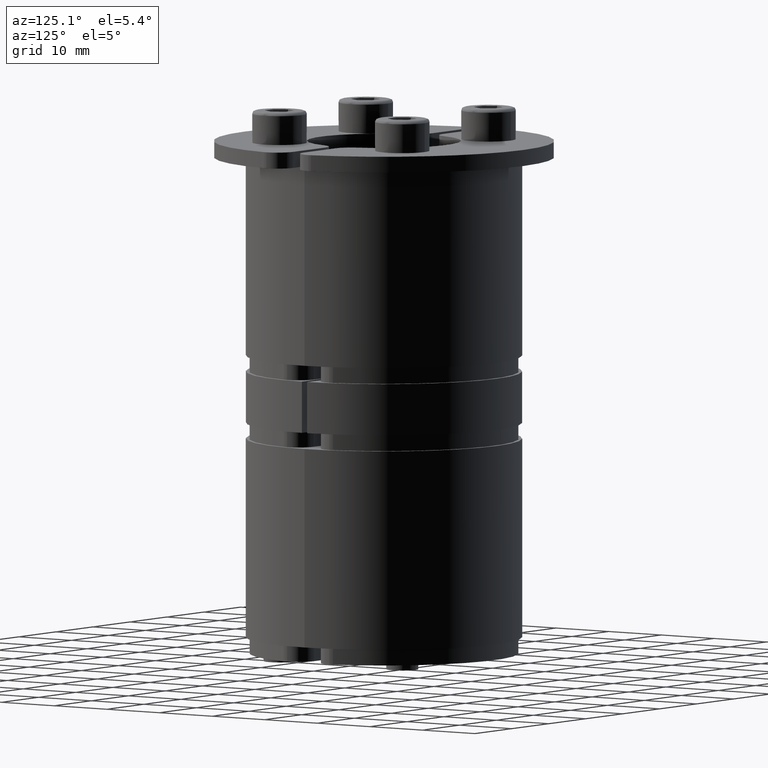
[diagram: clean part render]
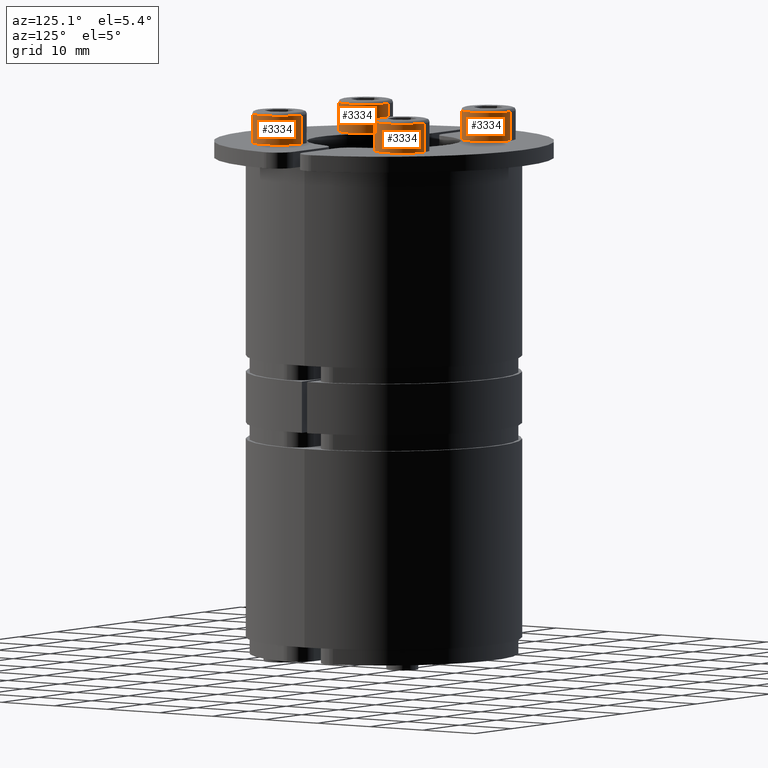
[diagram: same view with one multi-face feature highlighted, each face labeled with its STEP entity id]
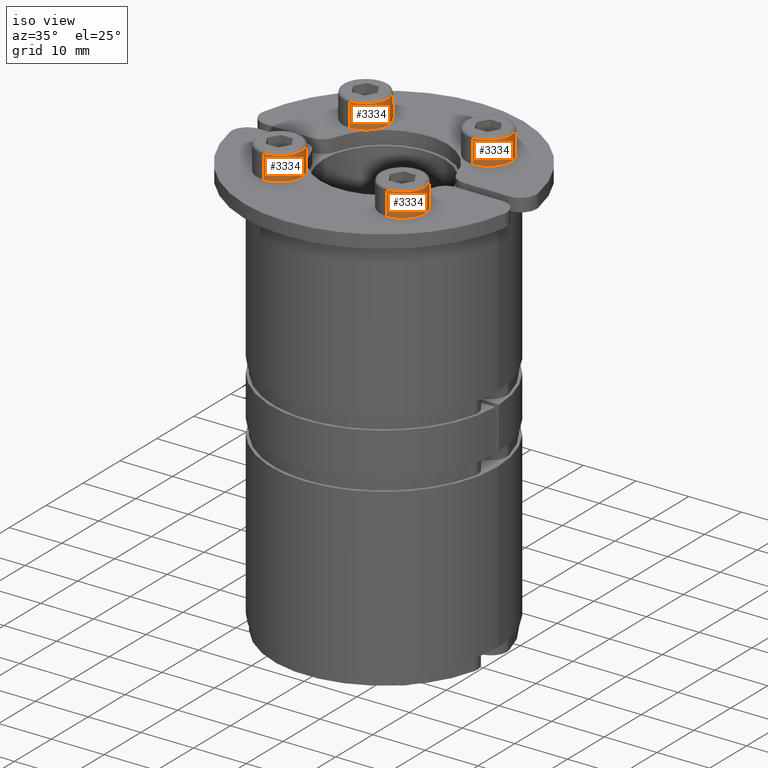
[diagram: same view with one multi-face feature highlighted, each face labeled with its STEP entity id]
A machine part, auxiliary view. The highlighted faces form ONE feature: a constant-radius fillet chain: 4 tangent blend faces with common blend radius 4.25 mm. The faces share edges in the B-rep.
A second angle (iso view) of the same feature is appended — it is thin or edge-on in the first view.
Their STEP definitions:
[1] entity #3334 (Cylinder):
#2724=CARTESIAN_POINT('',(2.842171E-014,4.250000000000000,0.0));
#2725=VERTEX_POINT('',#2724);
#2726=CARTESIAN_POINT('',(-4.500000000000085,4.250000000000227,0.0));
#2727=VERTEX_POINT('',#2726);
#2728=CARTESIAN_POINT('',(2.842171E-014,4.250000000000000,0.0));
#2729=DIRECTION('',(-1.0,0.0,0.0));
#2730=VECTOR('',#2729,4.500000000000114);
#2731=LINE('',#2728,#2730);
#2732=EDGE_CURVE('',#2725,#2727,#2731,.T.);
#2734=CARTESIAN_POINT('',(2.842171E-014,-4.250000000000000,-5.204577E-016));
#2735=VERTEX_POINT('',#2734);
#2743=CARTESIAN_POINT('',(-4.500000000000085,-4.250000000000000,-5.204577E-016));
#2744=VERTEX_POINT('',#2743);
#2745=CARTESIAN_POINT('',(-4.500000000000085,-4.250000000000000,-5.204577E-016));
#2746=DIRECTION('',(1.0,0.0,0.0));
#2747=VECTOR('',#2746,4.500000000000114);
#2748=LINE('',#2745,#2747);
#2749=EDGE_CURVE('',#2744,#2735,#2748,.T.);
#2833=CARTESIAN_POINT('',(-4.500000000000085,-5.204577E-016,4.250000000000000));
#2834=VERTEX_POINT('',#2833);
#2835=CARTESIAN_POINT('',(-4.500000000000085,0.0,0.0));
#2836=DIRECTION('',(-1.0,0.0,0.0));
#2837=DIRECTION('',(0.0,1.0,0.0));
#2838=AXIS2_PLACEMENT_3D('',#2835,#2836,#2837);
#2839=CIRCLE('',#2838,4.250000000000000);
#2840=EDGE_CURVE('',#2744,#2834,#2839,.T.);
#3305=CARTESIAN_POINT('',(-4.500000000000085,0.0,0.0));
#3306=DIRECTION('',(-1.0,0.0,0.0));
#3307=DIRECTION('',(0.0,1.0,0.0));
#3308=AXIS2_PLACEMENT_3D('',#3305,#3306,#3307);
#3309=CIRCLE('',#3308,4.250000000000000);
#3310=EDGE_CURVE('',#2834,#2727,#3309,.T.);
#3316=CARTESIAN_POINT('',(-2.500000000000000,0.0,0.0));
#3317=DIRECTION('',(-1.0,9.860761E-032,0.0));
#3318=DIRECTION('',(0.0,1.0,0.0));
#3319=AXIS2_PLACEMENT_3D('',#3316,#3317,#3318);
#3320=CYLINDRICAL_SURFACE('',#3319,4.250000000000000);
#3321=ORIENTED_EDGE('',*,*,#2732,.T.);
#3322=ORIENTED_EDGE('',*,*,#3310,.F.);
#3323=ORIENTED_EDGE('',*,*,#2840,.F.);
#3324=ORIENTED_EDGE('',*,*,#2749,.T.);
#3325=CARTESIAN_POINT('',(2.842171E-014,0.0,0.0));
#3326=DIRECTION('',(-1.0,0.0,0.0));
#3327=DIRECTION('',(0.0,1.0,0.0));
#3328=AXIS2_PLACEMENT_3D('',#3325,#3326,#3327);
#3329=CIRCLE('',#3328,4.250000000000000);
#3330=EDGE_CURVE('',#2735,#2725,#3329,.T.);
#3331=ORIENTED_EDGE('',*,*,#3330,.T.);
#3332=EDGE_LOOP('',(#3321,#3322,#3323,#3324,#3331));
#3333=FACE_OUTER_BOUND('',#3332,.T.);
#3334=ADVANCED_FACE('',(#3333),#3320,.T.);
[2] entity #3334 (Cylinder):
#2724=CARTESIAN_POINT('',(2.842171E-014,4.250000000000000,0.0));
#2725=VERTEX_POINT('',#2724);
#2726=CARTESIAN_POINT('',(-4.500000000000085,4.250000000000227,0.0));
#2727=VERTEX_POINT('',#2726);
#2728=CARTESIAN_POINT('',(2.842171E-014,4.250000000000000,0.0));
#2729=DIRECTION('',(-1.0,0.0,0.0));
#2730=VECTOR('',#2729,4.500000000000114);
#2731=LINE('',#2728,#2730);
#2732=EDGE_CURVE('',#2725,#2727,#2731,.T.);
#2734=CARTESIAN_POINT('',(2.842171E-014,-4.250000000000000,-5.204577E-016));
#2735=VERTEX_POINT('',#2734);
#2743=CARTESIAN_POINT('',(-4.500000000000085,-4.250000000000000,-5.204577E-016));
#2744=VERTEX_POINT('',#2743);
#2745=CARTESIAN_POINT('',(-4.500000000000085,-4.250000000000000,-5.204577E-016));
#2746=DIRECTION('',(1.0,0.0,0.0));
#2747=VECTOR('',#2746,4.500000000000114);
#2748=LINE('',#2745,#2747);
#2749=EDGE_CURVE('',#2744,#2735,#2748,.T.);
#2833=CARTESIAN_POINT('',(-4.500000000000085,-5.204577E-016,4.250000000000000));
#2834=VERTEX_POINT('',#2833);
#2835=CARTESIAN_POINT('',(-4.500000000000085,0.0,0.0));
#2836=DIRECTION('',(-1.0,0.0,0.0));
#2837=DIRECTION('',(0.0,1.0,0.0));
#2838=AXIS2_PLACEMENT_3D('',#2835,#2836,#2837);
#2839=CIRCLE('',#2838,4.250000000000000);
#2840=EDGE_CURVE('',#2744,#2834,#2839,.T.);
#3305=CARTESIAN_POINT('',(-4.500000000000085,0.0,0.0));
#3306=DIRECTION('',(-1.0,0.0,0.0));
#3307=DIRECTION('',(0.0,1.0,0.0));
#3308=AXIS2_PLACEMENT_3D('',#3305,#3306,#3307);
#3309=CIRCLE('',#3308,4.250000000000000);
#3310=EDGE_CURVE('',#2834,#2727,#3309,.T.);
#3316=CARTESIAN_POINT('',(-2.500000000000000,0.0,0.0));
#3317=DIRECTION('',(-1.0,9.860761E-032,0.0));
#3318=DIRECTION('',(0.0,1.0,0.0));
#3319=AXIS2_PLACEMENT_3D('',#3316,#3317,#3318);
#3320=CYLINDRICAL_SURFACE('',#3319,4.250000000000000);
#3321=ORIENTED_EDGE('',*,*,#2732,.T.);
#3322=ORIENTED_EDGE('',*,*,#3310,.F.);
#3323=ORIENTED_EDGE('',*,*,#2840,.F.);
#3324=ORIENTED_EDGE('',*,*,#2749,.T.);
#3325=CARTESIAN_POINT('',(2.842171E-014,0.0,0.0));
#3326=DIRECTION('',(-1.0,0.0,0.0));
#3327=DIRECTION('',(0.0,1.0,0.0));
#3328=AXIS2_PLACEMENT_3D('',#3325,#3326,#3327);
#3329=CIRCLE('',#3328,4.250000000000000);
#3330=EDGE_CURVE('',#2735,#2725,#3329,.T.);
#3331=ORIENTED_EDGE('',*,*,#3330,.T.);
#3332=EDGE_LOOP('',(#3321,#3322,#3323,#3324,#3331));
#3333=FACE_OUTER_BOUND('',#3332,.T.);
#3334=ADVANCED_FACE('',(#3333),#3320,.T.);
[3] entity #3334 (Cylinder):
#2724=CARTESIAN_POINT('',(2.842171E-014,4.250000000000000,0.0));
#2725=VERTEX_POINT('',#2724);
#2726=CARTESIAN_POINT('',(-4.500000000000085,4.250000000000227,0.0));
#2727=VERTEX_POINT('',#2726);
#2728=CARTESIAN_POINT('',(2.842171E-014,4.250000000000000,0.0));
#2729=DIRECTION('',(-1.0,0.0,0.0));
#2730=VECTOR('',#2729,4.500000000000114);
#2731=LINE('',#2728,#2730);
#2732=EDGE_CURVE('',#2725,#2727,#2731,.T.);
#2734=CARTESIAN_POINT('',(2.842171E-014,-4.250000000000000,-5.204577E-016));
#2735=VERTEX_POINT('',#2734);
#2743=CARTESIAN_POINT('',(-4.500000000000085,-4.250000000000000,-5.204577E-016));
#2744=VERTEX_POINT('',#2743);
#2745=CARTESIAN_POINT('',(-4.500000000000085,-4.250000000000000,-5.204577E-016));
#2746=DIRECTION('',(1.0,0.0,0.0));
#2747=VECTOR('',#2746,4.500000000000114);
#2748=LINE('',#2745,#2747);
#2749=EDGE_CURVE('',#2744,#2735,#2748,.T.);
#2833=CARTESIAN_POINT('',(-4.500000000000085,-5.204577E-016,4.250000000000000));
#2834=VERTEX_POINT('',#2833);
#2835=CARTESIAN_POINT('',(-4.500000000000085,0.0,0.0));
#2836=DIRECTION('',(-1.0,0.0,0.0));
#2837=DIRECTION('',(0.0,1.0,0.0));
#2838=AXIS2_PLACEMENT_3D('',#2835,#2836,#2837);
#2839=CIRCLE('',#2838,4.250000000000000);
#2840=EDGE_CURVE('',#2744,#2834,#2839,.T.);
#3305=CARTESIAN_POINT('',(-4.500000000000085,0.0,0.0));
#3306=DIRECTION('',(-1.0,0.0,0.0));
#3307=DIRECTION('',(0.0,1.0,0.0));
#3308=AXIS2_PLACEMENT_3D('',#3305,#3306,#3307);
#3309=CIRCLE('',#3308,4.250000000000000);
#3310=EDGE_CURVE('',#2834,#2727,#3309,.T.);
#3316=CARTESIAN_POINT('',(-2.500000000000000,0.0,0.0));
#3317=DIRECTION('',(-1.0,9.860761E-032,0.0));
#3318=DIRECTION('',(0.0,1.0,0.0));
#3319=AXIS2_PLACEMENT_3D('',#3316,#3317,#3318);
#3320=CYLINDRICAL_SURFACE('',#3319,4.250000000000000);
#3321=ORIENTED_EDGE('',*,*,#2732,.T.);
#3322=ORIENTED_EDGE('',*,*,#3310,.F.);
#3323=ORIENTED_EDGE('',*,*,#2840,.F.);
#3324=ORIENTED_EDGE('',*,*,#2749,.T.);
#3325=CARTESIAN_POINT('',(2.842171E-014,0.0,0.0));
#3326=DIRECTION('',(-1.0,0.0,0.0));
#3327=DIRECTION('',(0.0,1.0,0.0));
#3328=AXIS2_PLACEMENT_3D('',#3325,#3326,#3327);
#3329=CIRCLE('',#3328,4.250000000000000);
#3330=EDGE_CURVE('',#2735,#2725,#3329,.T.);
#3331=ORIENTED_EDGE('',*,*,#3330,.T.);
#3332=EDGE_LOOP('',(#3321,#3322,#3323,#3324,#3331));
#3333=FACE_OUTER_BOUND('',#3332,.T.);
#3334=ADVANCED_FACE('',(#3333),#3320,.T.);
[4] entity #3334 (Cylinder):
#2724=CARTESIAN_POINT('',(2.842171E-014,4.250000000000000,0.0));
#2725=VERTEX_POINT('',#2724);
#2726=CARTESIAN_POINT('',(-4.500000000000085,4.250000000000227,0.0));
#2727=VERTEX_POINT('',#2726);
#2728=CARTESIAN_POINT('',(2.842171E-014,4.250000000000000,0.0));
#2729=DIRECTION('',(-1.0,0.0,0.0));
#2730=VECTOR('',#2729,4.500000000000114);
#2731=LINE('',#2728,#2730);
#2732=EDGE_CURVE('',#2725,#2727,#2731,.T.);
#2734=CARTESIAN_POINT('',(2.842171E-014,-4.250000000000000,-5.204577E-016));
#2735=VERTEX_POINT('',#2734);
#2743=CARTESIAN_POINT('',(-4.500000000000085,-4.250000000000000,-5.204577E-016));
#2744=VERTEX_POINT('',#2743);
#2745=CARTESIAN_POINT('',(-4.500000000000085,-4.250000000000000,-5.204577E-016));
#2746=DIRECTION('',(1.0,0.0,0.0));
#2747=VECTOR('',#2746,4.500000000000114);
#2748=LINE('',#2745,#2747);
#2749=EDGE_CURVE('',#2744,#2735,#2748,.T.);
#2833=CARTESIAN_POINT('',(-4.500000000000085,-5.204577E-016,4.250000000000000));
#2834=VERTEX_POINT('',#2833);
#2835=CARTESIAN_POINT('',(-4.500000000000085,0.0,0.0));
#2836=DIRECTION('',(-1.0,0.0,0.0));
#2837=DIRECTION('',(0.0,1.0,0.0));
#2838=AXIS2_PLACEMENT_3D('',#2835,#2836,#2837);
#2839=CIRCLE('',#2838,4.250000000000000);
#2840=EDGE_CURVE('',#2744,#2834,#2839,.T.);
#3305=CARTESIAN_POINT('',(-4.500000000000085,0.0,0.0));
#3306=DIRECTION('',(-1.0,0.0,0.0));
#3307=DIRECTION('',(0.0,1.0,0.0));
#3308=AXIS2_PLACEMENT_3D('',#3305,#3306,#3307);
#3309=CIRCLE('',#3308,4.250000000000000);
#3310=EDGE_CURVE('',#2834,#2727,#3309,.T.);
#3316=CARTESIAN_POINT('',(-2.500000000000000,0.0,0.0));
#3317=DIRECTION('',(-1.0,9.860761E-032,0.0));
#3318=DIRECTION('',(0.0,1.0,0.0));
#3319=AXIS2_PLACEMENT_3D('',#3316,#3317,#3318);
#3320=CYLINDRICAL_SURFACE('',#3319,4.250000000000000);
#3321=ORIENTED_EDGE('',*,*,#2732,.T.);
#3322=ORIENTED_EDGE('',*,*,#3310,.F.);
#3323=ORIENTED_EDGE('',*,*,#2840,.F.);
#3324=ORIENTED_EDGE('',*,*,#2749,.T.);
#3325=CARTESIAN_POINT('',(2.842171E-014,0.0,0.0));
#3326=DIRECTION('',(-1.0,0.0,0.0));
#3327=DIRECTION('',(0.0,1.0,0.0));
#3328=AXIS2_PLACEMENT_3D('',#3325,#3326,#3327);
#3329=CIRCLE('',#3328,4.250000000000000);
#3330=EDGE_CURVE('',#2735,#2725,#3329,.T.);
#3331=ORIENTED_EDGE('',*,*,#3330,.T.);
#3332=EDGE_LOOP('',(#3321,#3322,#3323,#3324,#3331));
#3333=FACE_OUTER_BOUND('',#3332,.T.);
#3334=ADVANCED_FACE('',(#3333),#3320,.T.);